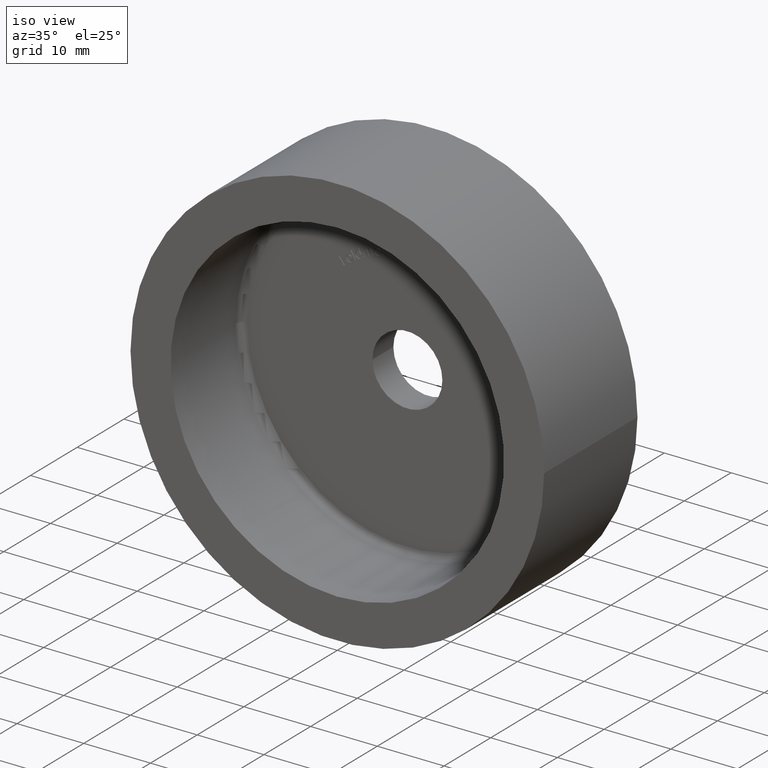
[diagram: clean part render]
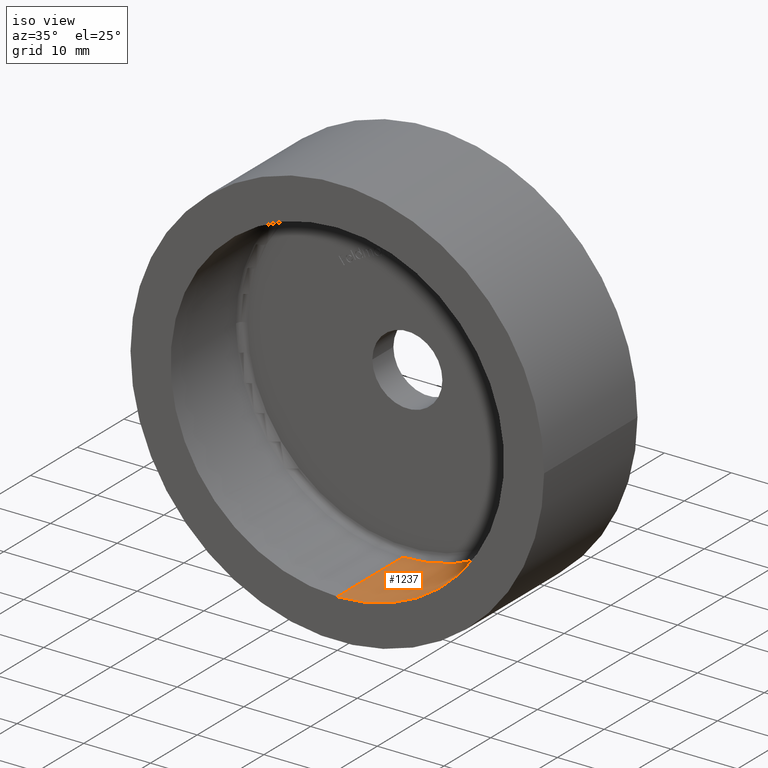
[diagram: same view with one face highlighted and labeled with its STEP entity id]
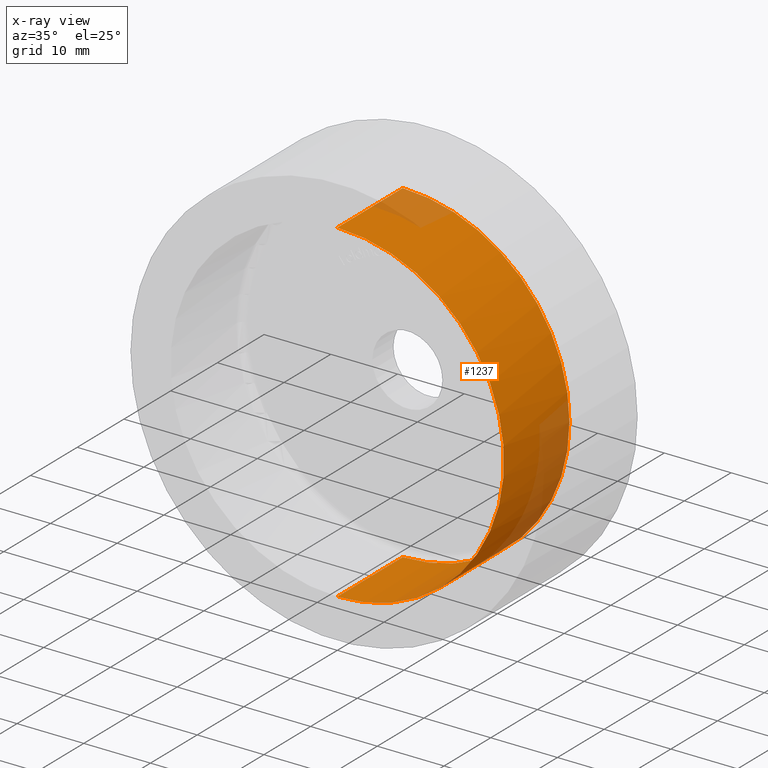
[diagram: x-ray of the same camera — body ghosted, the highlighted face saturated]
A machine part, iso view. The second image highlights one B-rep face of the part: STEP entity #1237.
The next image is the same camera in x-ray: the body ghosted, the highlighted face saturated — about 15% of this face is hidden behind the body in this view.
In plain terms, the highlighted cylindrical surface (partial cylindrical patch) has radius 25 mm, axis along (-0, -1, -0).
Its self-contained STEP definition (entity closure, byte-faithful):
#53 = ORIENTED_EDGE ( 'NONE', *, *, #2485, .T. ) ;
#782 = DIRECTION ( 'NONE',  ( 0.000000000000000000, -1.000000000000000000, 0.000000000000000000 ) ) ;
#1237 = ADVANCED_FACE ( 'NONE', ( #6184 ), #12643, .F. ) ;
#1764 = ORIENTED_EDGE ( 'NONE', *, *, #13975, .T. ) ;
#1775 = VERTEX_POINT ( 'NONE', #8202 ) ;
#2144 = CARTESIAN_POINT ( 'NONE',  ( 3.061616997868383043E-15, 0.000000000000000000, 25.00000000000000000 ) ) ;
#2485 = EDGE_CURVE ( 'NONE', #1775, #11728, #14463, .T. ) ;
#2609 = CARTESIAN_POINT ( 'NONE',  ( 0.000000000000000000, 90.71067811865476926, -25.00000000000000000 ) ) ;
#2764 = DIRECTION ( 'NONE',  ( -1.734723475976807341E-16, 1.000000000000000000, -0.000000000000000000 ) ) ;
#2776 = CIRCLE ( 'NONE', #13562, 25.00000000000000000 ) ;
#2918 = DIRECTION ( 'NONE',  ( -1.000000000000000000, -2.081668171172168513E-16, 0.000000000000000000 ) ) ;
#2998 = CARTESIAN_POINT ( 'NONE',  ( 0.000000000000000000, 13.99999999999998401, 0.000000000000000000 ) ) ;
#3365 = EDGE_LOOP ( 'NONE', ( #13700, #6053, #13757, #53, #1764 ) ) ;
#3702 = CARTESIAN_POINT ( 'NONE',  ( 0.000000000000000000, 90.71067811865476926, 0.000000000000000000 ) ) ;
#3754 = DIRECTION ( 'NONE',  ( -0.000000000000000000, -1.000000000000000000, -0.000000000000000000 ) ) ;
#4604 = DIRECTION ( 'NONE',  ( -0.000000000000000000, -1.000000000000000000, -0.000000000000000000 ) ) ;
#4764 = EDGE_CURVE ( 'NONE', #7500, #7933, #7204, .T. ) ;
#4829 = DIRECTION ( 'NONE',  ( 0.000000000000000000, 0.000000000000000000, -1.000000000000000000 ) ) ;
#6034 = AXIS2_PLACEMENT_3D ( 'NONE', #2998, #12166, #7677 ) ;
#6053 = ORIENTED_EDGE ( 'NONE', *, *, #4764, .T. ) ;
#6184 = FACE_OUTER_BOUND ( 'NONE', #3365, .T. ) ;
#7204 = CIRCLE ( 'NONE', #11391, 25.00000000000000000 ) ;
#7500 = VERTEX_POINT ( 'NONE', #10230 ) ;
#7604 = CARTESIAN_POINT ( 'NONE',  ( 0.000000000000000000, 0.000000000000000000, 0.000000000000000000 ) ) ;
#7677 = DIRECTION ( 'NONE',  ( -1.000000000000000000, -2.081668171172168513E-16, 0.000000000000000000 ) ) ;
#7811 = VECTOR ( 'NONE', #4604, 1000.000000000000000 ) ;
#7933 = VERTEX_POINT ( 'NONE', #12170 ) ;
#8000 = AXIS2_PLACEMENT_3D ( 'NONE', #3702, #3754, #4829 ) ;
#8061 = CARTESIAN_POINT ( 'NONE',  ( 3.061616997868383043E-15, 90.71067811865476926, 25.00000000000000000 ) ) ;
#8202 = CARTESIAN_POINT ( 'NONE',  ( -9.027796614315169813E-31, 13.99999999999998401, -25.00000000000000000 ) ) ;
#8503 = CARTESIAN_POINT ( 'NONE',  ( 0.000000000000000000, 13.99999999999998401, 0.000000000000000000 ) ) ;
#9881 = DIRECTION ( 'NONE',  ( 0.000000000000000000, 0.000000000000000000, -1.000000000000000000 ) ) ;
#10230 = CARTESIAN_POINT ( 'NONE',  ( 3.061616997868382254E-15, 13.99999999999998401, 25.00000000000000000 ) ) ;
#10468 = LINE ( 'NONE', #8061, #7811 ) ;
#11391 = AXIS2_PLACEMENT_3D ( 'NONE', #8503, #2764, #2918 ) ;
#11671 = VERTEX_POINT ( 'NONE', #2144 ) ;
#11681 = DIRECTION ( 'NONE',  ( -0.000000000000000000, -1.000000000000000000, -0.000000000000000000 ) ) ;
#11728 = VERTEX_POINT ( 'NONE', #14654 ) ;
#12106 = EDGE_CURVE ( 'NONE', #7500, #11671, #10468, .T. ) ;
#12166 = DIRECTION ( 'NONE',  ( -1.734723475976807341E-16, 1.000000000000000000, -0.000000000000000000 ) ) ;
#12170 = CARTESIAN_POINT ( 'NONE',  ( 25.00000000000000000, 13.99999999999998757, 3.061616997868383043E-15 ) ) ;
#12643 = CYLINDRICAL_SURFACE ( 'NONE', #8000, 25.00000000000000000 ) ;
#13087 = EDGE_CURVE ( 'NONE', #7933, #1775, #13564, .T. ) ;
#13541 = VECTOR ( 'NONE', #11681, 1000.000000000000000 ) ;
#13562 = AXIS2_PLACEMENT_3D ( 'NONE', #7604, #782, #9881 ) ;
#13564 = CIRCLE ( 'NONE', #6034, 25.00000000000000000 ) ;
#13700 = ORIENTED_EDGE ( 'NONE', *, *, #12106, .F. ) ;
#13757 = ORIENTED_EDGE ( 'NONE', *, *, #13087, .T. ) ;
#13975 = EDGE_CURVE ( 'NONE', #11728, #11671, #2776, .T. ) ;
#14463 = LINE ( 'NONE', #2609, #13541 ) ;
#14654 = CARTESIAN_POINT ( 'NONE',  ( 0.000000000000000000, 0.000000000000000000, -25.00000000000000000 ) ) ;